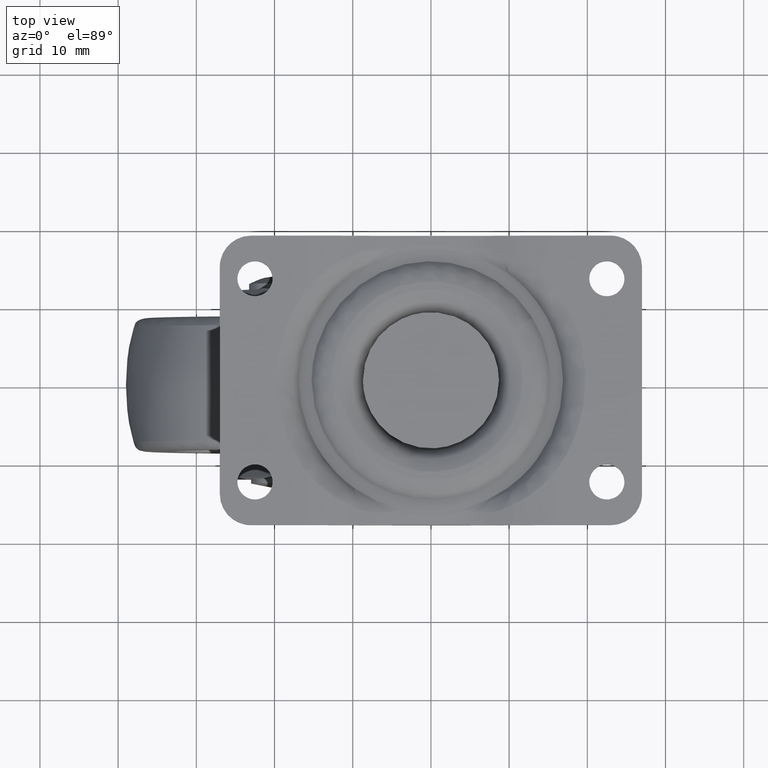
[diagram: clean part render]
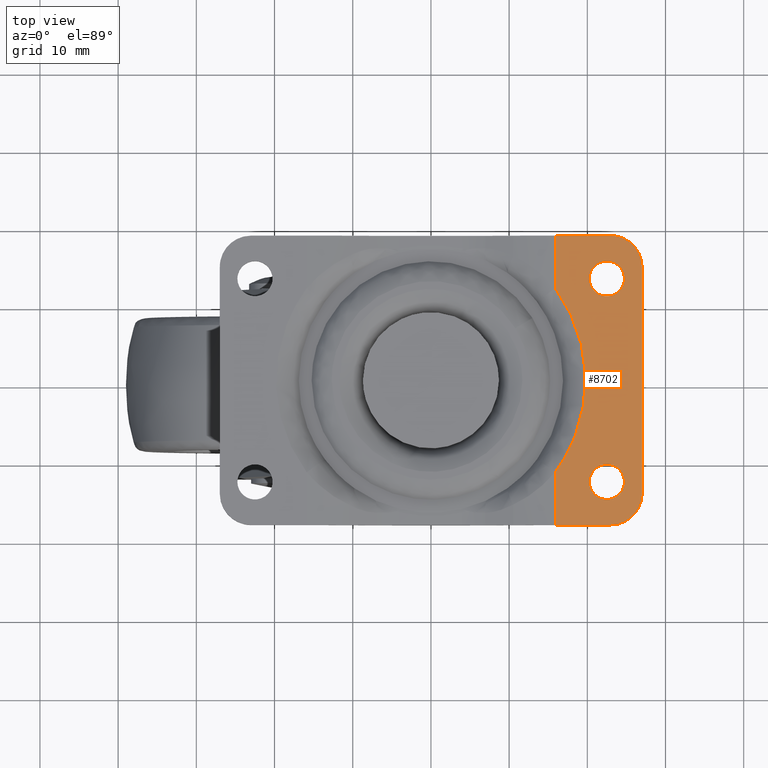
[diagram: same view with one face highlighted and labeled with its STEP entity id]
A machine part, top view. The second image highlights one B-rep face of the part: STEP entity #8702.
In plain terms, the highlighted face is a freeform B-spline surface patch.
Its self-contained STEP definition (entity closure, byte-faithful):
#2200=CARTESIAN_POINT('',(22.234422971940909,10.765728565691431,-1.064786E-017));
#2201=VERTEX_POINT('',#2200);
#2207=CARTESIAN_POINT('',(24.750000000000000,13.0,0.0));
#2208=VERTEX_POINT('',#2207);
#2209=CARTESIAN_POINT('',(22.234422971940909,10.765728565691422,-1.064786E-017));
#2210=CARTESIAN_POINT('',(22.366745730700959,10.749999999999996,0.0));
#2211=CARTESIAN_POINT('',(22.500000000000000,10.750000000000000,0.0));
#2212=CARTESIAN_POINT('',(24.750000000000000,10.750000000000000,0.0));
#2213=CARTESIAN_POINT('',(24.750000000000000,13.0,0.0));
#2221=(BOUNDED_CURVE()B_SPLINE_CURVE(2,(#2209,#2210,#2211,#2212,#2213),.UNSPECIFIED.,.F.,.U.)B_SPLINE_CURVE_WITH_KNOTS((3,2,3),(0.229562473503332,0.250000000000000,0.500000000000000),.UNSPECIFIED.)CURVE()GEOMETRIC_REPRESENTATION_ITEM()RATIONAL_B_SPLINE_CURVE((0.956026754163753,0.976055948319223,1.0,0.707106781186547,1.0))REPRESENTATION_ITEM(''));
#2222=EDGE_CURVE('',#2201,#2208,#2221,.T.);
#2224=CARTESIAN_POINT('',(22.637356683257050,15.245803451230360,-1.283695E-016));
#2225=VERTEX_POINT('',#2224);
#2226=CARTESIAN_POINT('',(24.750000000000000,13.0,0.0));
#2227=CARTESIAN_POINT('',(24.749999999999989,15.116591040086021,0.0));
#2228=CARTESIAN_POINT('',(22.637356683257046,15.245803451230358,-1.283695E-016));
#2236=(BOUNDED_CURVE()B_SPLINE_CURVE(2,(#2226,#2227,#2228),.UNSPECIFIED.,.F.,.U.)B_SPLINE_CURVE_WITH_KNOTS((3,3),(0.500000000000000,0.739333156677341),.UNSPECIFIED.)CURVE()GEOMETRIC_REPRESENTATION_ITEM()RATIONAL_B_SPLINE_CURVE((1.0,0.719603765487957,0.976072458385571))REPRESENTATION_ITEM(''));
#2237=EDGE_CURVE('',#2208,#2225,#2236,.T.);
#2311=CARTESIAN_POINT('',(20.250000000000000,13.0,0.0));
#2312=VERTEX_POINT('',#2311);
#2313=CARTESIAN_POINT('',(22.637356683257046,15.245803451230358,-1.283695E-016));
#2314=CARTESIAN_POINT('',(22.568742448525832,15.249999999999998,0.0));
#2315=CARTESIAN_POINT('',(22.500000000000000,15.250000000000000,0.0));
#2316=CARTESIAN_POINT('',(20.250000000000004,15.250000000000002,0.0));
#2317=CARTESIAN_POINT('',(20.250000000000000,13.0,0.0));
#2325=(BOUNDED_CURVE()B_SPLINE_CURVE(2,(#2313,#2314,#2315,#2316,#2317),.UNSPECIFIED.,.F.,.U.)B_SPLINE_CURVE_WITH_KNOTS((3,2,3),(0.739333156677340,0.750000000000000,1.0),.UNSPECIFIED.)CURVE()GEOMETRIC_REPRESENTATION_ITEM()RATIONAL_B_SPLINE_CURVE((0.976072458385570,0.987503015698590,1.0,0.707106781186547,1.0))REPRESENTATION_ITEM(''));
#2326=EDGE_CURVE('',#2225,#2312,#2325,.T.);
#2328=CARTESIAN_POINT('',(20.250000000000000,13.0,0.0));
#2329=CARTESIAN_POINT('',(20.250000000000004,11.001607316756035,0.0));
#2330=CARTESIAN_POINT('',(22.234422971940909,10.765728565691422,-1.064786E-017));
#2338=(BOUNDED_CURVE()B_SPLINE_CURVE(2,(#2328,#2329,#2330),.UNSPECIFIED.,.F.,.U.)B_SPLINE_CURVE_WITH_KNOTS((3,3),(0.0,0.229562473503332),.UNSPECIFIED.)CURVE()GEOMETRIC_REPRESENTATION_ITEM()RATIONAL_B_SPLINE_CURVE((1.0,0.731050832867325,0.956026754163753))REPRESENTATION_ITEM(''));
#2339=EDGE_CURVE('',#2312,#2201,#2338,.T.);
#2386=CARTESIAN_POINT('',(22.234422971940909,-15.234271434308580,-1.064786E-017));
#2387=VERTEX_POINT('',#2386);
#2393=CARTESIAN_POINT('',(24.750000000000000,-13.0,0.0));
#2394=VERTEX_POINT('',#2393);
#2395=CARTESIAN_POINT('',(22.234422971940916,-15.234271434308571,-1.064786E-017));
#2396=CARTESIAN_POINT('',(22.366745730700956,-15.250000000000000,0.0));
#2397=CARTESIAN_POINT('',(22.500000000000000,-15.250000000000000,0.0));
#2398=CARTESIAN_POINT('',(24.750000000000000,-15.250000000000002,0.0));
#2399=CARTESIAN_POINT('',(24.750000000000000,-13.0,0.0));
#2407=(BOUNDED_CURVE()B_SPLINE_CURVE(2,(#2395,#2396,#2397,#2398,#2399),.UNSPECIFIED.,.F.,.U.)B_SPLINE_CURVE_WITH_KNOTS((3,2,3),(0.229562473503332,0.250000000000000,0.500000000000000),.UNSPECIFIED.)CURVE()GEOMETRIC_REPRESENTATION_ITEM()RATIONAL_B_SPLINE_CURVE((0.956026754163753,0.976055948319222,1.0,0.707106781186547,1.0))REPRESENTATION_ITEM(''));
#2408=EDGE_CURVE('',#2387,#2394,#2407,.T.);
#2410=CARTESIAN_POINT('',(22.637356683257050,-10.754196548769640,-2.463307E-016));
#2411=VERTEX_POINT('',#2410);
#2412=CARTESIAN_POINT('',(24.750000000000000,-13.0,0.0));
#2413=CARTESIAN_POINT('',(24.749999999999989,-10.883408959913986,0.0));
#2414=CARTESIAN_POINT('',(22.637356683257046,-10.754196548769645,-2.463307E-016));
#2422=(BOUNDED_CURVE()B_SPLINE_CURVE(2,(#2412,#2413,#2414),.UNSPECIFIED.,.F.,.U.)B_SPLINE_CURVE_WITH_KNOTS((3,3),(0.500000000000000,0.739333156677341),.UNSPECIFIED.)CURVE()GEOMETRIC_REPRESENTATION_ITEM()RATIONAL_B_SPLINE_CURVE((1.0,0.719603765487957,0.976072458385571))REPRESENTATION_ITEM(''));
#2423=EDGE_CURVE('',#2394,#2411,#2422,.T.);
#2497=CARTESIAN_POINT('',(20.250000000000000,-13.0,0.0));
#2498=VERTEX_POINT('',#2497);
#2499=CARTESIAN_POINT('',(22.637356683257046,-10.754196548769645,-2.463307E-016));
#2500=CARTESIAN_POINT('',(22.568742448525835,-10.750000000000004,0.0));
#2501=CARTESIAN_POINT('',(22.500000000000000,-10.750000000000000,0.0));
#2502=CARTESIAN_POINT('',(20.250000000000004,-10.750000000000000,0.0));
#2503=CARTESIAN_POINT('',(20.250000000000000,-13.0,0.0));
#2511=(BOUNDED_CURVE()B_SPLINE_CURVE(2,(#2499,#2500,#2501,#2502,#2503),.UNSPECIFIED.,.F.,.U.)B_SPLINE_CURVE_WITH_KNOTS((3,2,3),(0.739333156677340,0.750000000000000,1.0),.UNSPECIFIED.)CURVE()GEOMETRIC_REPRESENTATION_ITEM()RATIONAL_B_SPLINE_CURVE((0.976072458385570,0.987503015698589,1.0,0.707106781186547,1.0))REPRESENTATION_ITEM(''));
#2512=EDGE_CURVE('',#2411,#2498,#2511,.T.);
#2514=CARTESIAN_POINT('',(20.250000000000000,-13.0,0.0));
#2515=CARTESIAN_POINT('',(20.249999999999996,-14.998392683243960,0.0));
#2516=CARTESIAN_POINT('',(22.234422971940909,-15.234271434308580,-1.064786E-017));
#2524=(BOUNDED_CURVE()B_SPLINE_CURVE(2,(#2514,#2515,#2516),.UNSPECIFIED.,.F.,.U.)B_SPLINE_CURVE_WITH_KNOTS((3,3),(0.0,0.229562473503332),.UNSPECIFIED.)CURVE()GEOMETRIC_REPRESENTATION_ITEM()RATIONAL_B_SPLINE_CURVE((1.0,0.731050832867325,0.956026754163753))REPRESENTATION_ITEM(''));
#2525=EDGE_CURVE('',#2498,#2387,#2524,.T.);
#5917=CARTESIAN_POINT('',(15.891814243022900,-11.781915231721220,0.0));
#5918=VERTEX_POINT('',#5917);
#6110=CARTESIAN_POINT('',(15.891814243022900,11.781915231721220,0.0));
#6111=VERTEX_POINT('',#6110);
#6141=CARTESIAN_POINT('',(15.891814243022930,11.781915231721230,0.0));
#6142=CARTESIAN_POINT('',(24.626721686860492,3.469447E-015,0.0));
#6143=CARTESIAN_POINT('',(15.891814243022930,-11.781915231721230,0.0));
#6151=(BOUNDED_CURVE()B_SPLINE_CURVE(2,(#6141,#6142,#6143),.UNSPECIFIED.,.F.,.U.)CURVE()GEOMETRIC_REPRESENTATION_ITEM()QUASI_UNIFORM_CURVE()RATIONAL_B_SPLINE_CURVE((1.0,0.803310491145263,1.0))REPRESENTATION_ITEM(''));
#6152=EDGE_CURVE('',#6111,#5918,#6151,.T.);
#7901=CARTESIAN_POINT('',(23.0,-18.500000000000000,0.0));
#7902=VERTEX_POINT('',#7901);
#7908=CARTESIAN_POINT('',(15.891814243022900,-18.500000000000000,0.0));
#7909=VERTEX_POINT('',#7908);
#7910=CARTESIAN_POINT('',(15.891814243022900,-18.500000000000000,0.0));
#7911=CARTESIAN_POINT('',(23.0,-18.500000000000000,0.0));
#7912=QUASI_UNIFORM_CURVE('',1,(#7910,#7911),.UNSPECIFIED.,.F.,.U.);
#7913=EDGE_CURVE('',#7909,#7902,#7912,.T.);
#8097=CARTESIAN_POINT('',(15.891814243022900,18.500000000000000,0.0));
#8098=VERTEX_POINT('',#8097);
#8112=CARTESIAN_POINT('',(23.0,18.500000000000000,0.0));
#8113=VERTEX_POINT('',#8112);
#8114=CARTESIAN_POINT('',(23.0,18.500000000000000,0.0));
#8115=CARTESIAN_POINT('',(15.891814243022900,18.500000000000000,0.0));
#8116=QUASI_UNIFORM_CURVE('',1,(#8114,#8115),.UNSPECIFIED.,.F.,.U.);
#8117=EDGE_CURVE('',#8113,#8098,#8116,.T.);
#8150=CARTESIAN_POINT('',(27.0,-14.500000000000000,0.0));
#8151=VERTEX_POINT('',#8150);
#8157=CARTESIAN_POINT('',(23.0,-18.500000000000000,0.0));
#8158=CARTESIAN_POINT('',(27.000000000000011,-18.500000000000000,0.0));
#8159=CARTESIAN_POINT('',(27.0,-14.500000000000000,0.0));
#8167=(BOUNDED_CURVE()B_SPLINE_CURVE(2,(#8157,#8158,#8159),.UNSPECIFIED.,.F.,.U.)CURVE()GEOMETRIC_REPRESENTATION_ITEM()QUASI_UNIFORM_CURVE()RATIONAL_B_SPLINE_CURVE((1.0,0.707106781186548,1.0))REPRESENTATION_ITEM(''));
#8168=EDGE_CURVE('',#7902,#8151,#8167,.T.);
#8180=CARTESIAN_POINT('',(27.0,14.500000000000000,0.0));
#8181=VERTEX_POINT('',#8180);
#8187=CARTESIAN_POINT('',(27.0,-14.500000000000000,0.0));
#8188=CARTESIAN_POINT('',(27.0,14.500000000000000,0.0));
#8189=QUASI_UNIFORM_CURVE('',1,(#8187,#8188),.UNSPECIFIED.,.F.,.U.);
#8190=EDGE_CURVE('',#8151,#8181,#8189,.T.);
#8212=CARTESIAN_POINT('',(27.0,14.500000000000000,0.0));
#8213=CARTESIAN_POINT('',(27.000000000000011,18.500000000000000,0.0));
#8214=CARTESIAN_POINT('',(23.0,18.500000000000000,0.0));
#8222=(BOUNDED_CURVE()B_SPLINE_CURVE(2,(#8212,#8213,#8214),.UNSPECIFIED.,.F.,.U.)CURVE()GEOMETRIC_REPRESENTATION_ITEM()QUASI_UNIFORM_CURVE()RATIONAL_B_SPLINE_CURVE((1.0,0.707106781186548,1.0))REPRESENTATION_ITEM(''));
#8223=EDGE_CURVE('',#8181,#8113,#8222,.T.);
#8471=CARTESIAN_POINT('',(15.891814243022900,-11.781915231721220,0.0));
#8472=CARTESIAN_POINT('',(15.891814243022900,-18.500000000000000,0.0));
#8473=QUASI_UNIFORM_CURVE('',1,(#8471,#8472),.UNSPECIFIED.,.F.,.U.);
#8474=EDGE_CURVE('',#5918,#7909,#8473,.T.);
#8666=CARTESIAN_POINT('',(15.891814243022900,18.500000000000000,0.0));
#8667=CARTESIAN_POINT('',(15.891814243022900,11.781915231721220,0.0));
#8668=QUASI_UNIFORM_CURVE('',1,(#8666,#8667),.UNSPECIFIED.,.F.,.U.);
#8669=EDGE_CURVE('',#8098,#6111,#8668,.T.);
#8675=CARTESIAN_POINT('',(15.336960385991709,20.348149928286819,0.0));
#8676=CARTESIAN_POINT('',(27.554854154975949,20.348149928286819,0.0));
#8677=CARTESIAN_POINT('',(15.336960385991709,-20.348150920704160,0.0));
#8678=CARTESIAN_POINT('',(27.554854154975949,-20.348150920704160,0.0));
#8679=B_SPLINE_SURFACE_WITH_KNOTS('',1,1,((#8675,#8677),(#8676,#8678)),.UNSPECIFIED.,.F.,.F.,.U.,(2,2),(2,2),(0.0,12.217893768984229),(0.0,40.696300848990980),.UNSPECIFIED.);
#8680=ORIENTED_EDGE('',*,*,#8669,.T.);
#8681=ORIENTED_EDGE('',*,*,#6152,.T.);
#8682=ORIENTED_EDGE('',*,*,#8474,.T.);
#8683=ORIENTED_EDGE('',*,*,#7913,.T.);
#8684=ORIENTED_EDGE('',*,*,#8168,.T.);
#8685=ORIENTED_EDGE('',*,*,#8190,.T.);
#8686=ORIENTED_EDGE('',*,*,#8223,.T.);
#8687=ORIENTED_EDGE('',*,*,#8117,.T.);
#8688=EDGE_LOOP('',(#8680,#8681,#8682,#8683,#8684,#8685,#8686,#8687));
#8689=FACE_OUTER_BOUND('',#8688,.T.);
#8690=ORIENTED_EDGE('',*,*,#2423,.F.);
#8691=ORIENTED_EDGE('',*,*,#2408,.F.);
#8692=ORIENTED_EDGE('',*,*,#2525,.F.);
#8693=ORIENTED_EDGE('',*,*,#2512,.F.);
#8694=EDGE_LOOP('',(#8690,#8691,#8692,#8693));
#8695=FACE_BOUND('',#8694,.T.);
#8696=ORIENTED_EDGE('',*,*,#2237,.F.);
#8697=ORIENTED_EDGE('',*,*,#2222,.F.);
#8698=ORIENTED_EDGE('',*,*,#2339,.F.);
#8699=ORIENTED_EDGE('',*,*,#2326,.F.);
#8700=EDGE_LOOP('',(#8696,#8697,#8698,#8699));
#8701=FACE_BOUND('',#8700,.T.);
#8702=ADVANCED_FACE('',(#8689,#8695,#8701),#8679,.F.);